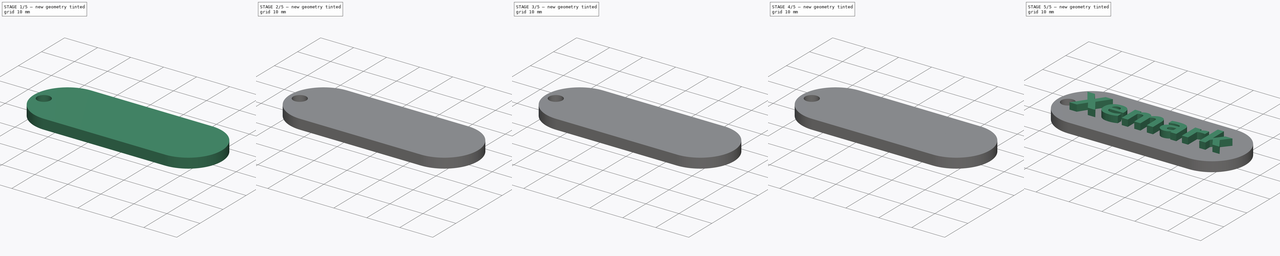
[diagram: build sequence overview — one tinted view per stage of 5, left to right]
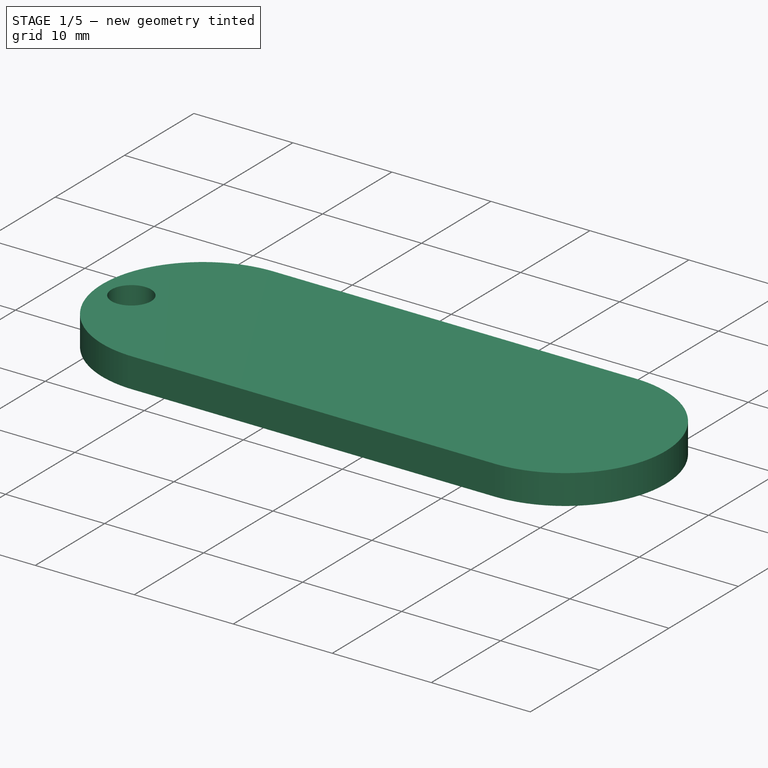
[diagram: stage 1 of 5 — iso view after this stage's code; geometry added in this stage tinted green]
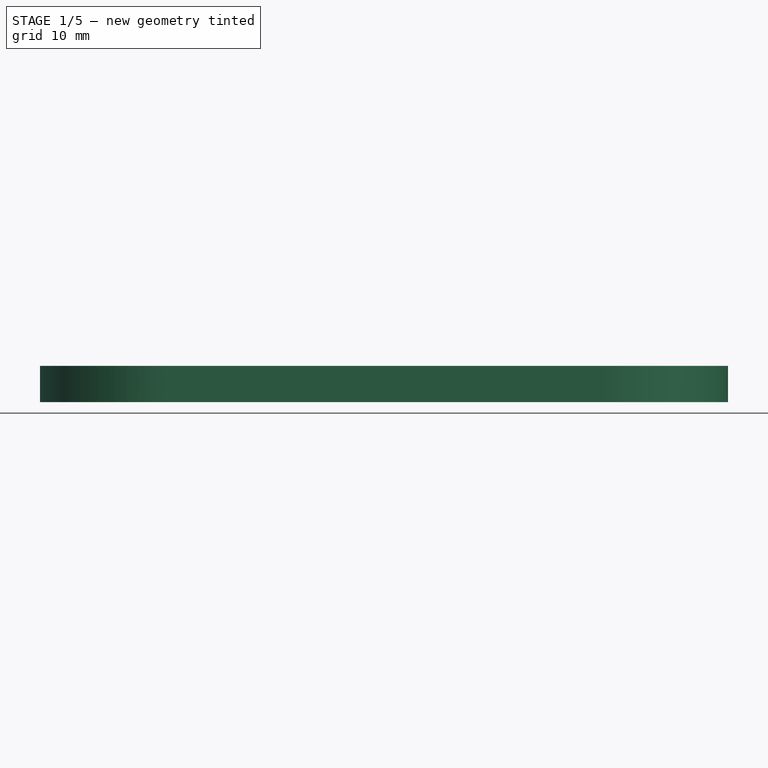
[diagram: stage 1 of 5 — front view after this stage's code; geometry added in this stage tinted green]
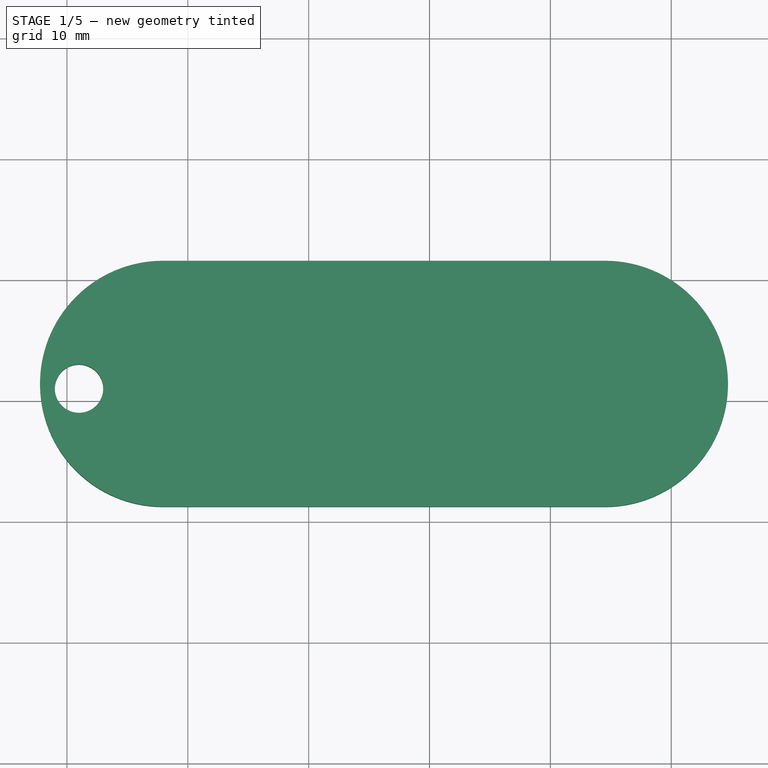
[diagram: stage 1 of 5 — top view after this stage's code; geometry added in this stage tinted green]
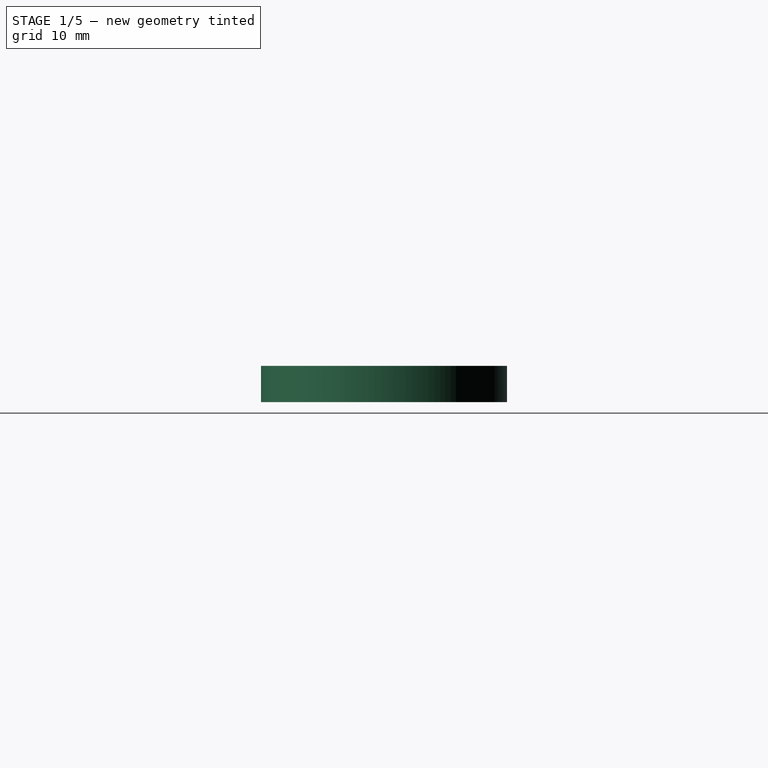
[diagram: stage 1 of 5 — right view after this stage's code; geometry added in this stage tinted green]
FCSTD DOCUMENT  (FreeCAD 0.16R6706 (Git))
Label: Xemark llavero
License: CreativeCommons Attribution-ShareAlike
LicenseURL: http://creativecommons.org/licenses/by-sa/4.0/
objects: Part::Feature×8, Part::Extrusion×8, Part::Cut×3, Part::MultiFuse×2, Sketcher::SketchObject×1, PartDesign::Pad×1, Part::Cylinder×1
note: 25 computed .brp shape members not serialized (recipe doc carries the construction recipe); baked Part::Feature solids carry a one-line shape summary decoded from their .brp

FEATURE [Sketcher::SketchObject] Sketch
  sketch-geometry (4):
    g0: ArcOfCircle CenterX=-12.0546 CenterY=1.40482 CenterZ=0 NormalX=0 NormalY=0 NormalZ=1 Radius=10.1729 StartAngle=1.5708 EndAngle=4.71239
    g1: ArcOfCircle CenterX=24.5206 CenterY=1.40482 CenterZ=0 NormalX=0 NormalY=0 NormalZ=1 Radius=10.1729 StartAngle=4.71239 EndAngle=7.85398
    g2: LineSegment StartX=-12.0546 StartY=-8.76804 StartZ=0 EndX=24.5206 EndY=-8.76804 EndZ=0
    g3: LineSegment StartX=-12.0546 StartY=11.5777 StartZ=0 EndX=24.5206 EndY=11.5777 EndZ=0
  constraints (8):
    c: Tangent(g0,g3) = 1.5708
    c: Tangent(g0,g2) = -1.5708
    c: Tangent(g2,g1) = -1.5708
    c: Tangent(g3,g1) = 1.5708
    c: Horizontal(g2)
    c: Equal(g0,g1)
    c: DistanceX(g3,g3) = 36.5752
    c: Equal(g2,g3)
FEATURE [PartDesign::Pad] Pad
  Length = 3
  Length2 = 100
  Sketch = -> Sketch
  Type = 0
FEATURE [Part::Cylinder] Cylinder  label="Cilindro"
  Angle = 360
  Height = 10
  Placement = pos=(-19,1,-6) rot=(0,0,1;0rad)
  Radius = 2
FEATURE [Part::Cut] Cut002
  Base = -> Pad
  Tool = -> Cylinder
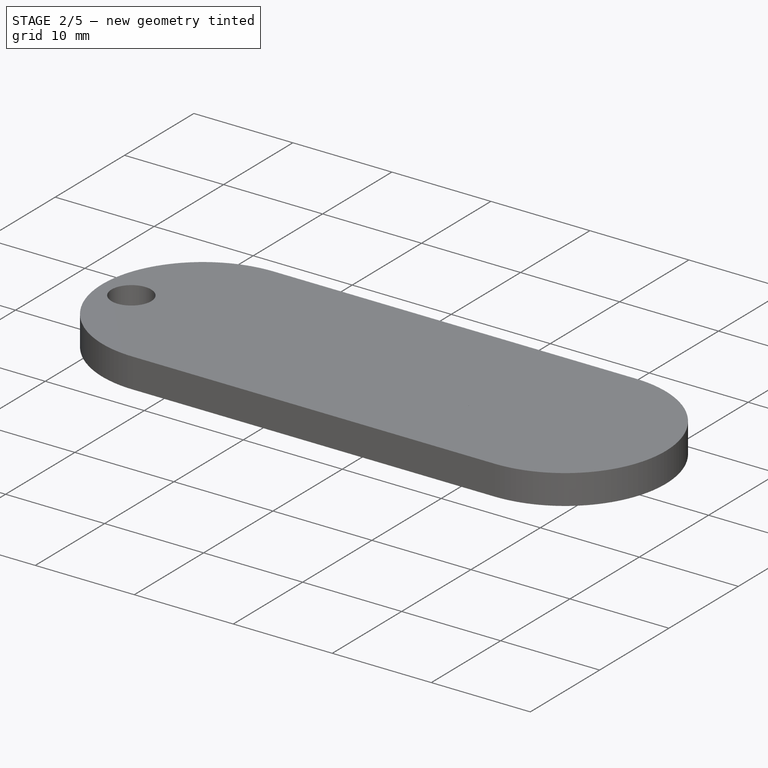
[diagram: stage 2 of 5 — iso view after this stage's code; geometry added in this stage tinted green]
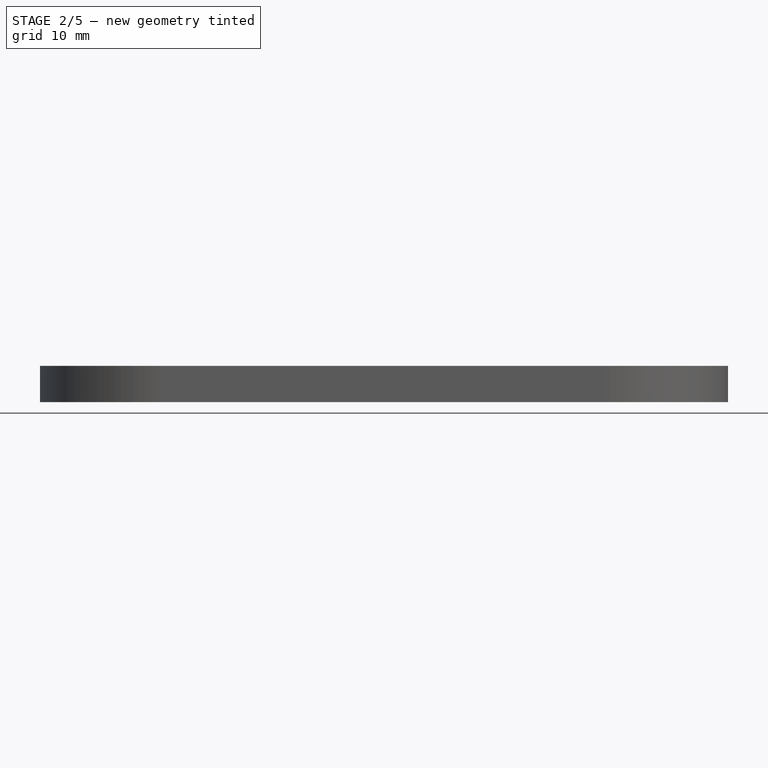
[diagram: stage 2 of 5 — front view after this stage's code; geometry added in this stage tinted green]
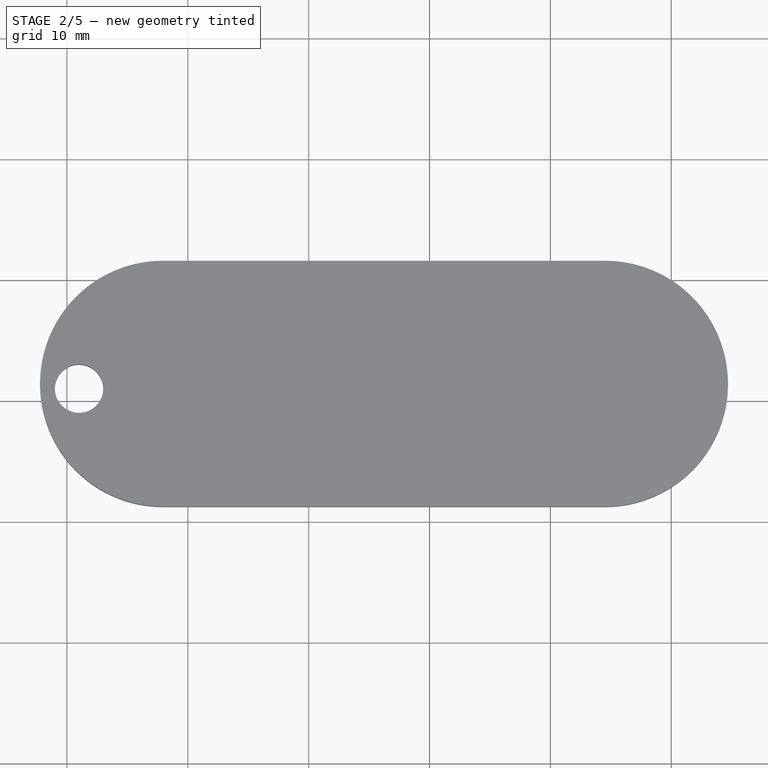
[diagram: stage 2 of 5 — top view after this stage's code; geometry added in this stage tinted green]
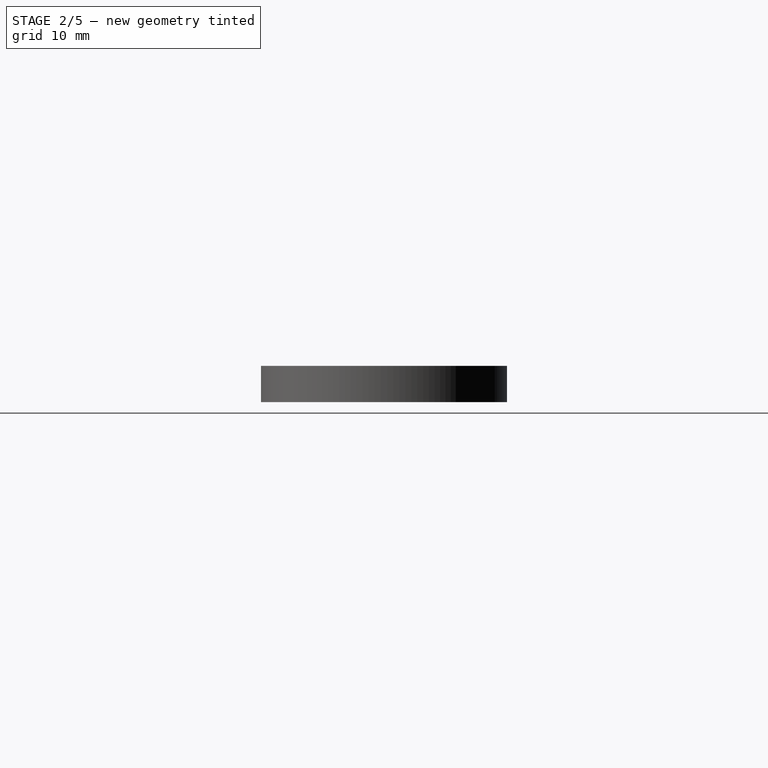
[diagram: stage 2 of 5 — right view after this stage's code; geometry added in this stage tinted green]
FEATURE [Part::Extrusion] Extrude004
  Base = -> path49
  Dir = (0,0,3)
  Solid = true
FEATURE [Part::Extrusion] Extrude005
  Base = -> path49001
  Dir = (0,0,3)
  Solid = true
FEATURE [Part::Cut] Cut001
  Base = -> Extrude005
  Tool = -> Extrude004
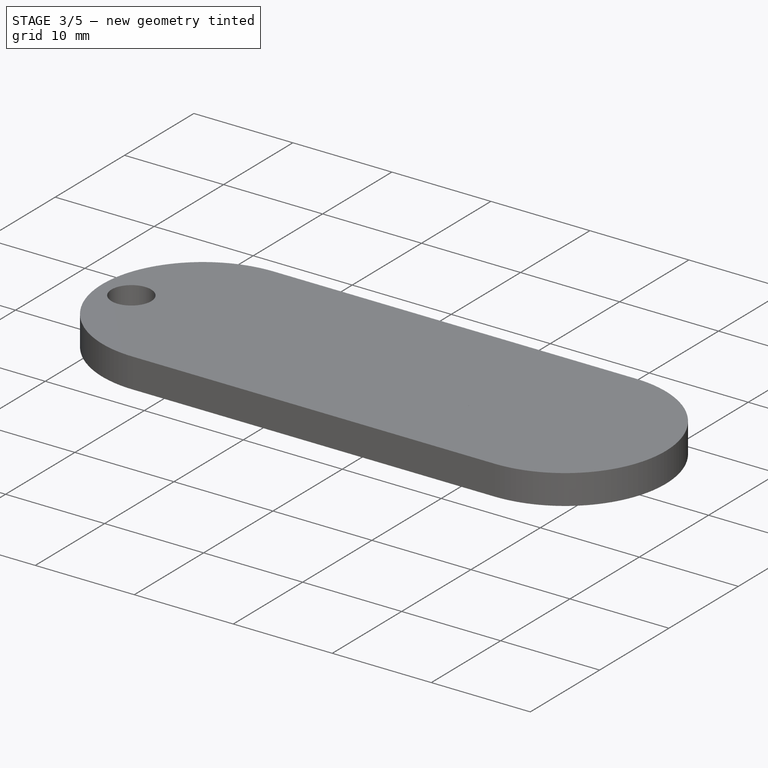
[diagram: stage 3 of 5 — iso view after this stage's code; geometry added in this stage tinted green]
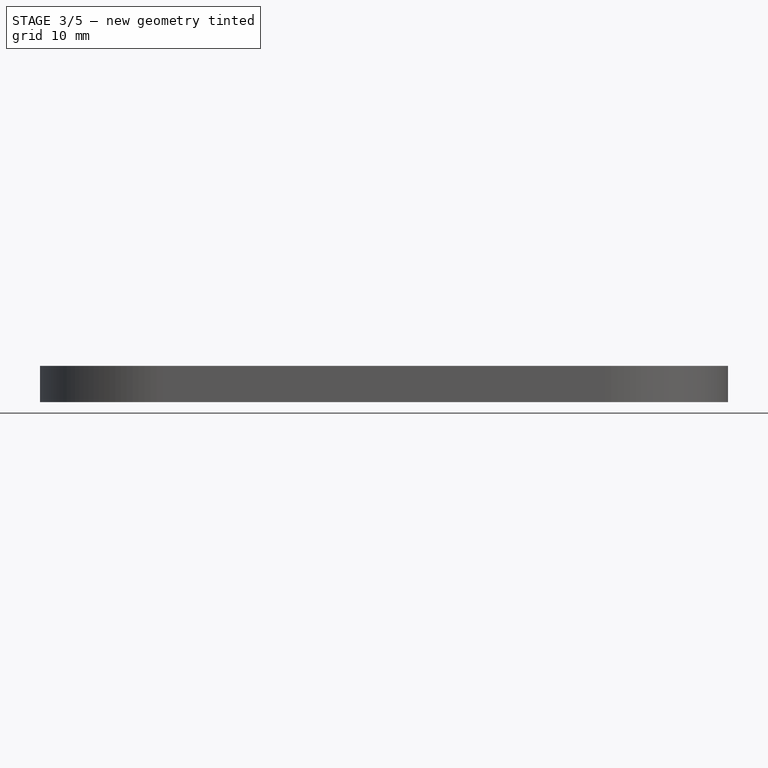
[diagram: stage 3 of 5 — front view after this stage's code; geometry added in this stage tinted green]
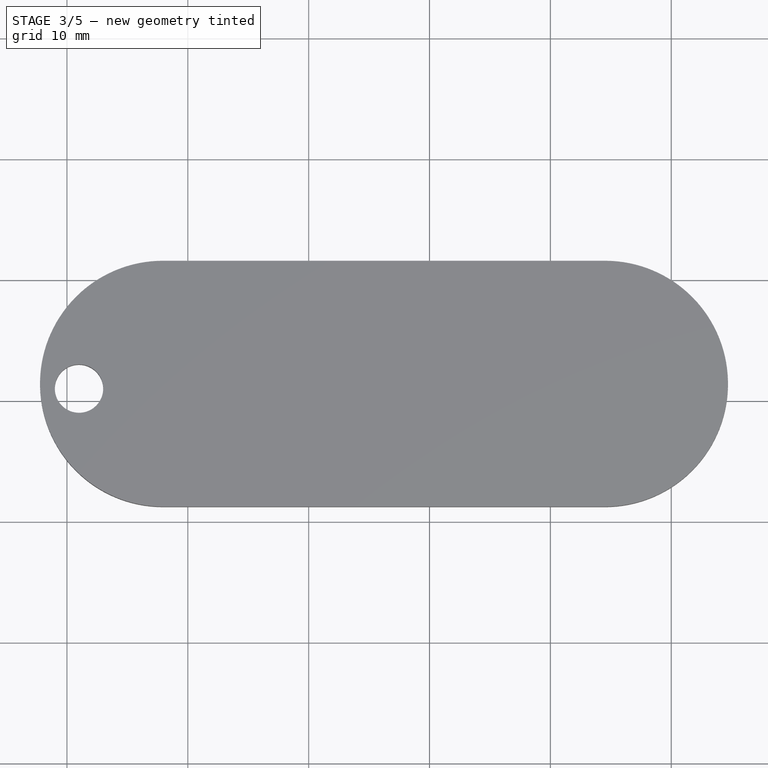
[diagram: stage 3 of 5 — top view after this stage's code; geometry added in this stage tinted green]
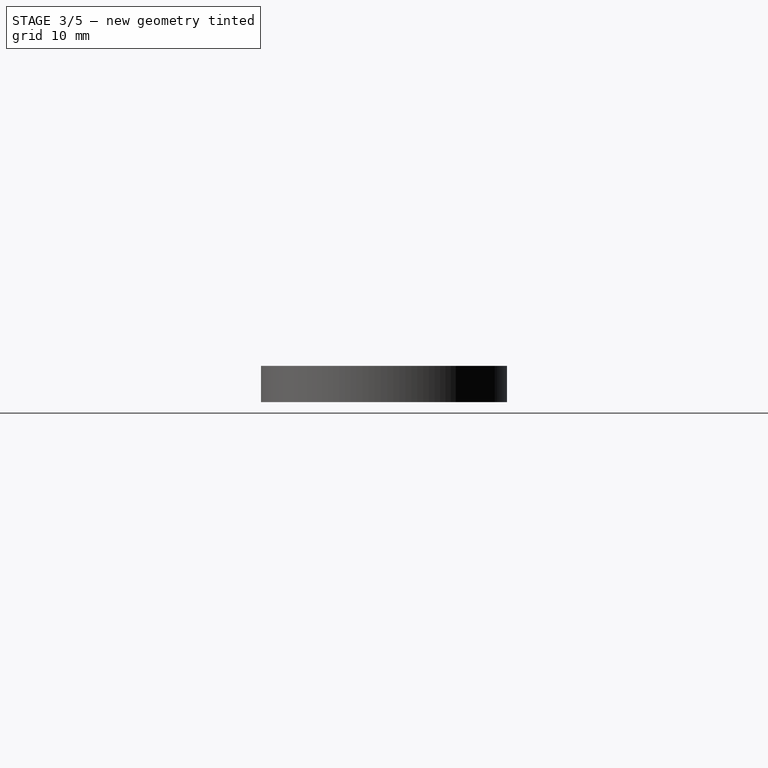
[diagram: stage 3 of 5 — right view after this stage's code; geometry added in this stage tinted green]
FEATURE [Part::Extrusion] Extrude001
  Base = -> path45
  Dir = (0,0,3)
  Solid = true
FEATURE [Part::Extrusion] Extrude002
  Base = -> path45001
  Dir = (0,0,3)
  Solid = true
FEATURE [Part::Cut] Cut
  Base = -> Extrude001
  Tool = -> Extrude002
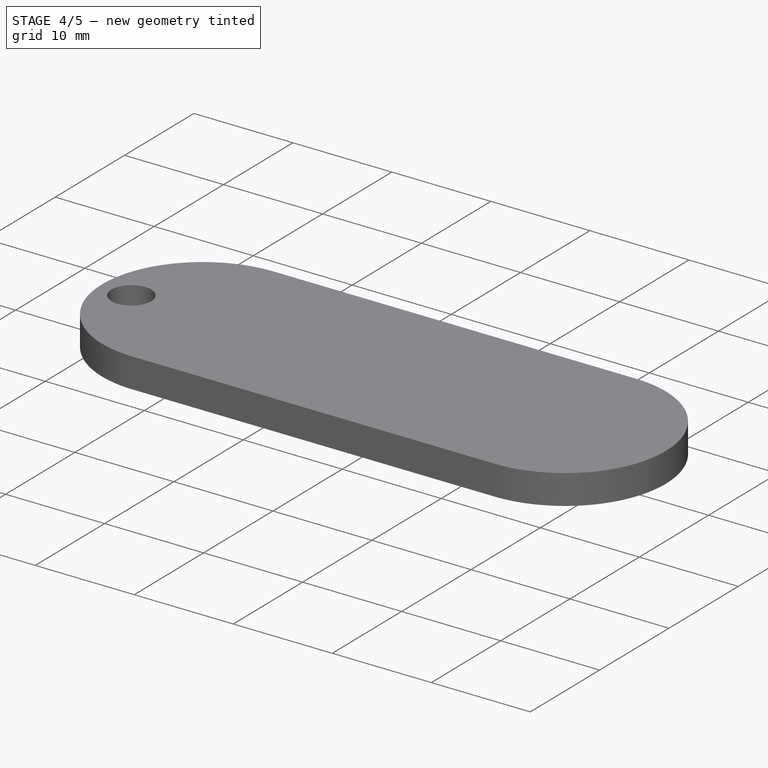
[diagram: stage 4 of 5 — iso view after this stage's code; geometry added in this stage tinted green]
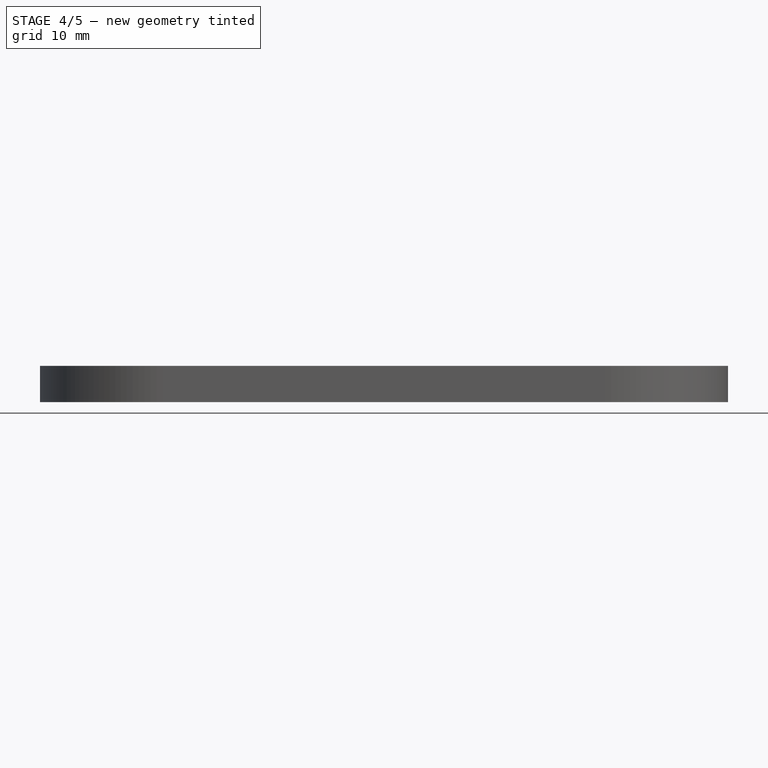
[diagram: stage 4 of 5 — front view after this stage's code; geometry added in this stage tinted green]
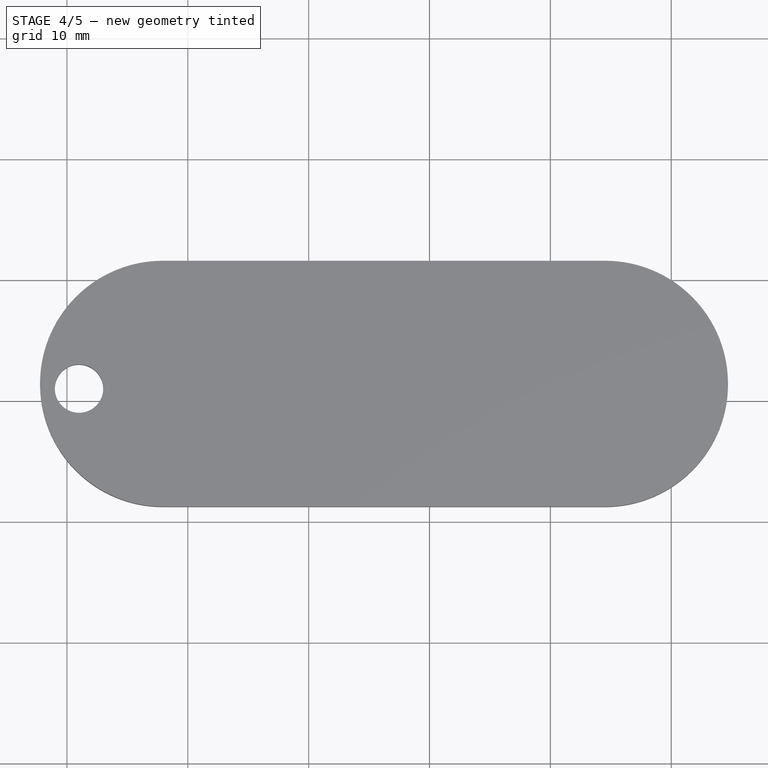
[diagram: stage 4 of 5 — top view after this stage's code; geometry added in this stage tinted green]
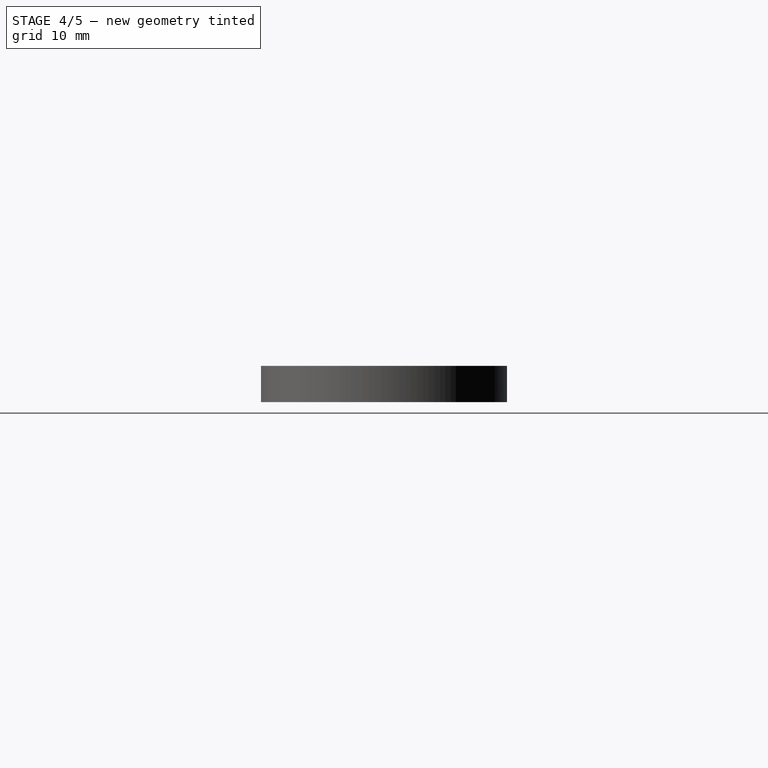
[diagram: stage 4 of 5 — right view after this stage's code; geometry added in this stage tinted green]
FEATURE [Part::Extrusion] Extrude003
  Base = -> path47
  Dir = (0,0,3)
  Solid = true
FEATURE [Part::Extrusion] Extrude006
  Base = -> path51
  Dir = (0,0,3)
  Solid = true
FEATURE [Part::Extrusion] Extrude007
  Base = -> path53
  Dir = (0,0,3)
  Solid = true
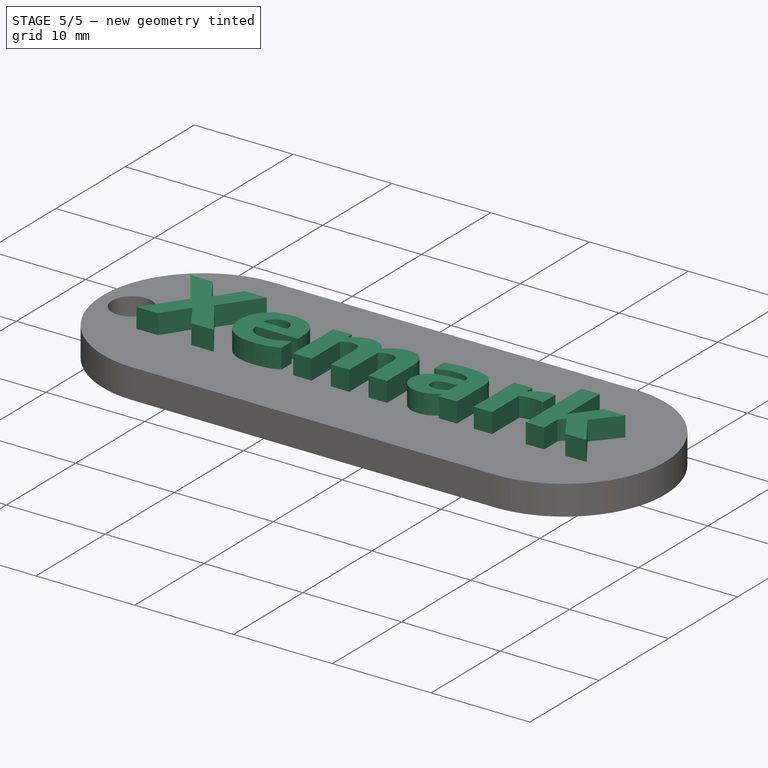
[diagram: stage 5 of 5 — iso view after this stage's code; geometry added in this stage tinted green]
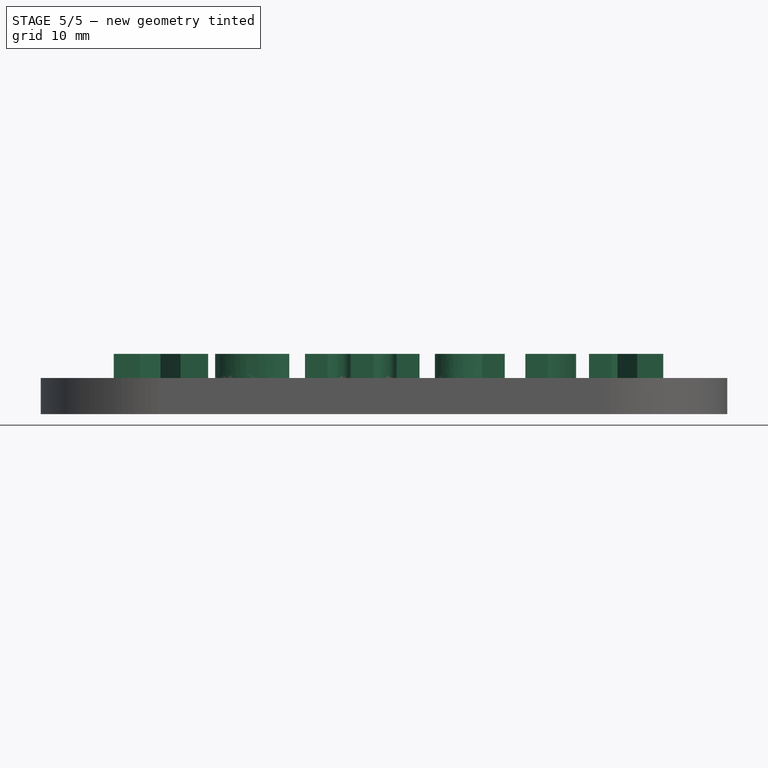
[diagram: stage 5 of 5 — front view after this stage's code; geometry added in this stage tinted green]
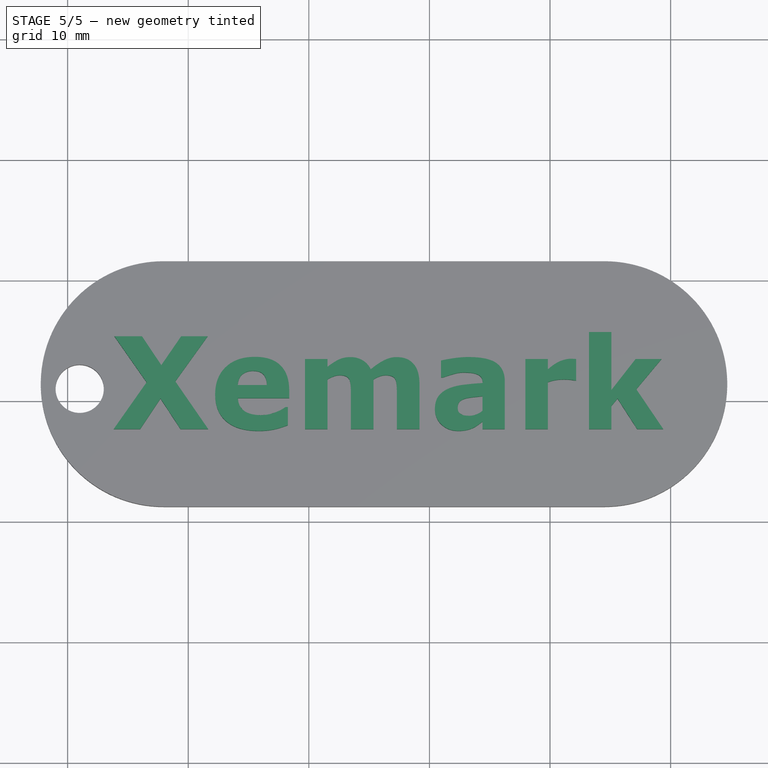
[diagram: stage 5 of 5 — top view after this stage's code; geometry added in this stage tinted green]
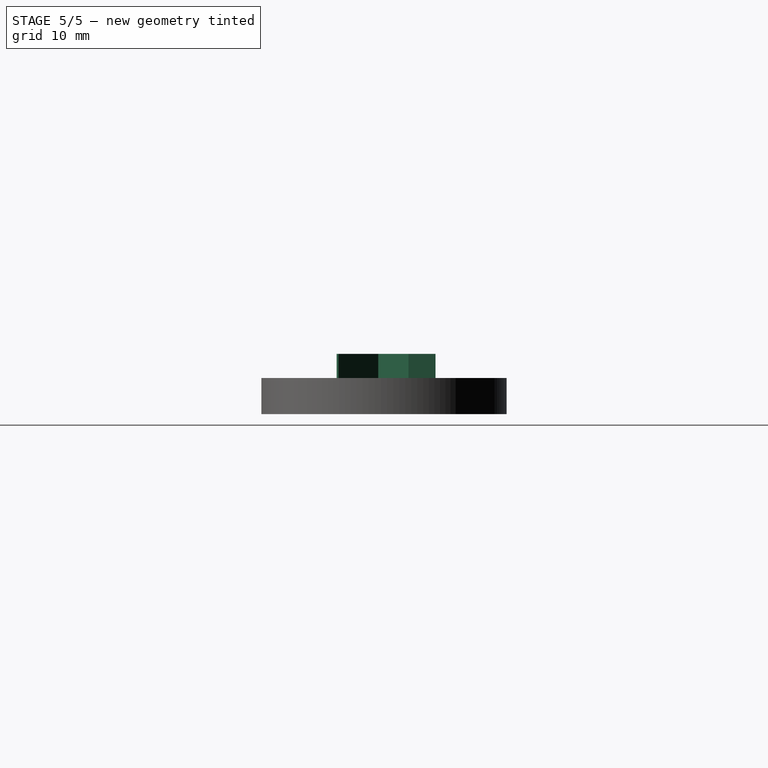
[diagram: stage 5 of 5 — right view after this stage's code; geometry added in this stage tinted green]
FEATURE [Part::Feature] path43
  shape: bbox 7.834 x 7.695 x 2e-07 mm, 0 faces, 0 solids (baked)
FEATURE [Part::Feature] path45
  shape: bbox 6.139 x 6.139 x 2e-07 mm, 0 faces, 0 solids (baked)
FEATURE [Part::Feature] path45001
  shape: bbox 2.413 x 1.173 x 2e-07 mm, 0 faces, 0 solids (baked)
FEATURE [Part::Feature] path47
  shape: bbox 9.488 x 5.963 x 2e-07 mm, 0 faces, 0 solids (baked)
FEATURE [Part::Feature] path49
  shape: bbox 2.057 x 1.623 x 2e-07 mm, 0 faces, 0 solids (baked)
FEATURE [Part::Feature] path49001
  shape: bbox 5.793 x 6.124 x 2e-07 mm, 0 faces, 0 solids (baked)
FEATURE [Part::Feature] path51
  shape: bbox 4.206 x 5.824 x 2e-07 mm, 0 faces, 0 solids (baked)
FEATURE [Part::Feature] path53
  shape: bbox 6.16 x 8.041 x 2e-07 mm, 0 faces, 0 solids (baked)
FEATURE [Part::Extrusion] Extrude
  Base = -> path43
  Dir = (0,0,3)
  Solid = true
FEATURE [Part::MultiFuse] Fusion
  Placement = pos=(0,0,2) rot=(0,0,1;0rad)
  Shapes = -> [Extrude,Cut,Cut001,Extrude007,Extrude003,Extrude006]
FEATURE [Part::MultiFuse] Fusion001
  Shapes = -> [Fusion,Cut002]
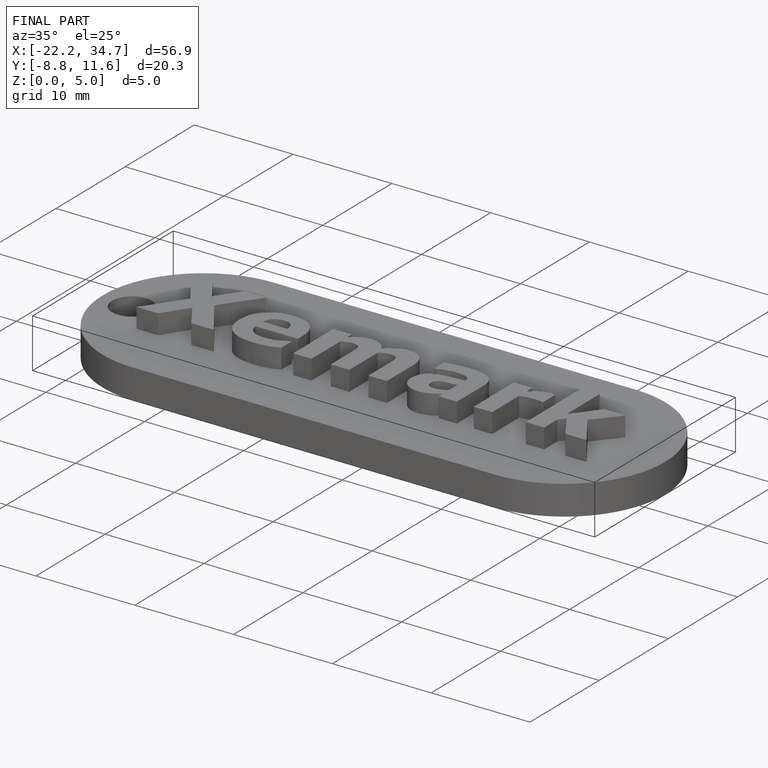
[diagram: finished part — iso view with bounding-box wireframe]
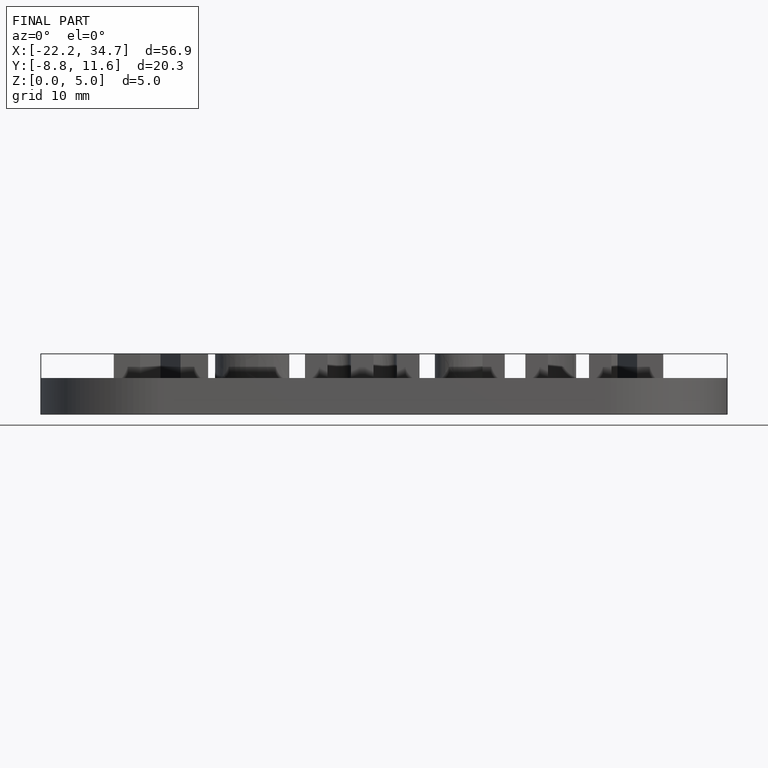
[diagram: finished part — front view with bounding-box wireframe]
